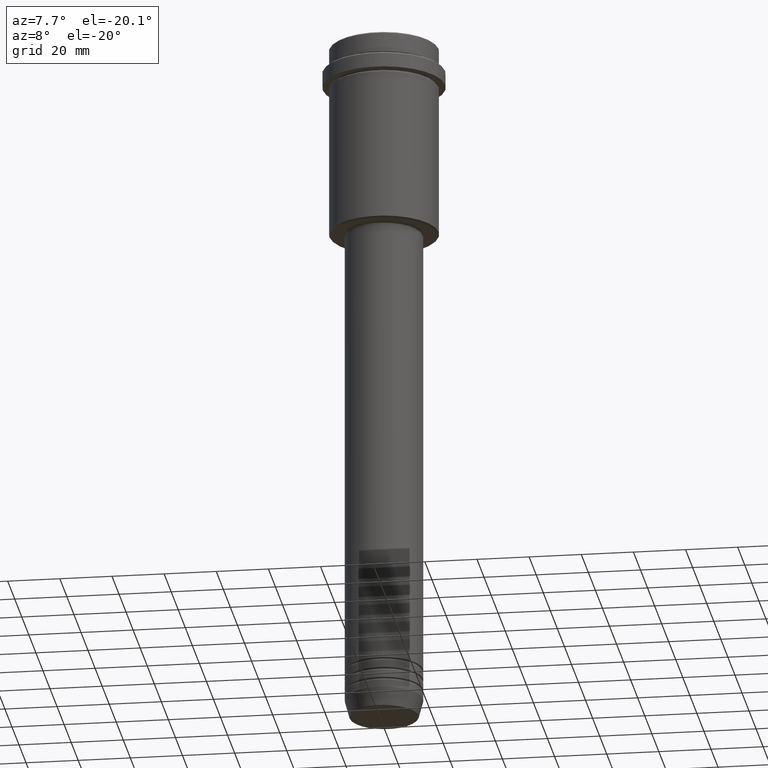
[diagram: clean part render]
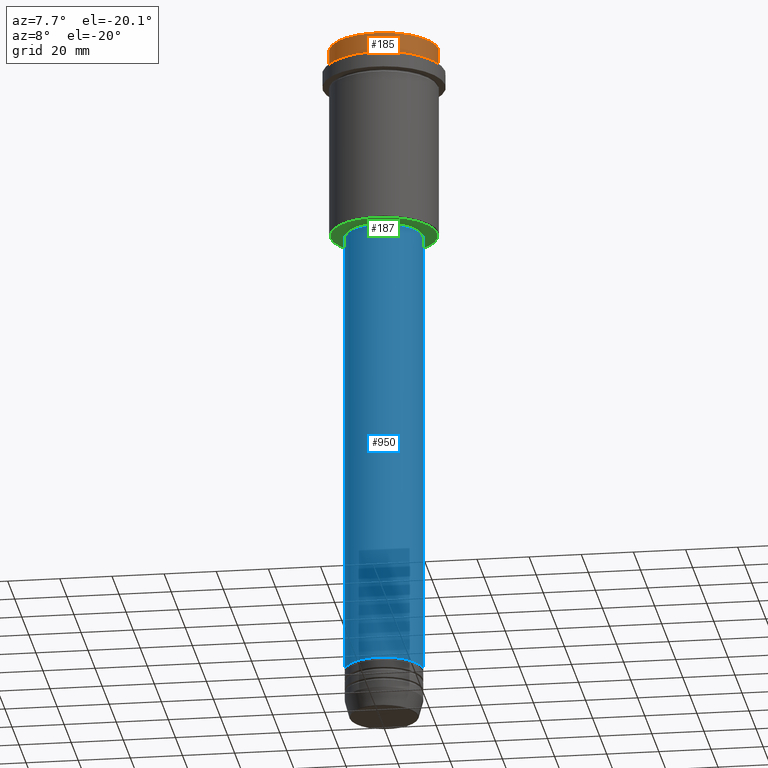
[diagram: same view with three faces highlighted in distinct colors, each labeled with its STEP entity id]
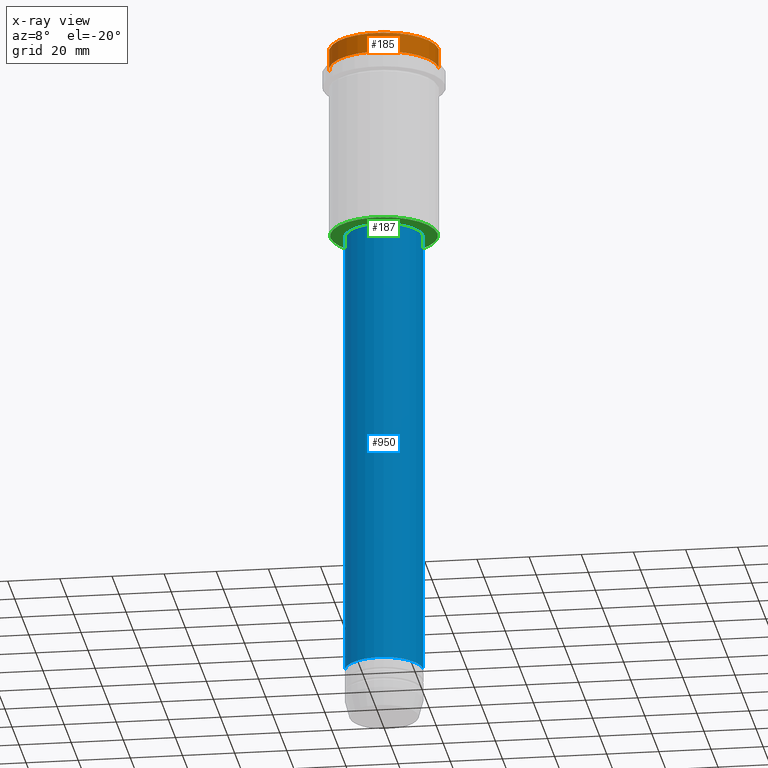
[diagram: x-ray of the same camera — body ghosted, the three highlighted faces saturated]
A machine part, auxiliary view with three faces highlighted in distinct colors.
The next image is the same camera in x-ray (body ghosted, the three faces saturated) — at least one of them is partly hidden behind the body in this view.
Their STEP definitions:

[orange] entity #185 — the highlighted cylindrical surface (partial cylindrical patch) has radius 21 mm, axis along (-0, -0, 1).
#8 = DIRECTION ( 'NONE',  ( 1.000000000000000000, 0.000000000000000000, 0.000000000000000000 ) ) ;
#49 = VERTEX_POINT ( 'NONE', #1188 ) ;
#58 = LINE ( 'NONE', #1007, #860 ) ;
#157 = EDGE_CURVE ( 'NONE', #448, #497, #655, .T. ) ;
#176 = DIRECTION ( 'NONE',  ( -0.000000000000000000, -0.000000000000000000, 1.000000000000000000 ) ) ;
#185 = ADVANCED_FACE ( 'NONE', ( #452 ), #560, .T. ) ;
#192 = ORIENTED_EDGE ( 'NONE', *, *, #334, .F. ) ;
#202 = ORIENTED_EDGE ( 'NONE', *, *, #310, .T. ) ;
#310 = EDGE_CURVE ( 'NONE', #791, #448, #58, .T. ) ;
#315 = CARTESIAN_POINT ( 'NONE',  ( 20.99999999999999645, 0.000000000000000000, -0.5000000000000905942 ) ) ;
#329 = DIRECTION ( 'NONE',  ( -0.000000000000000000, -0.000000000000000000, 1.000000000000000000 ) ) ;
#333 = CARTESIAN_POINT ( 'NONE',  ( 0.000000000000000000, 0.000000000000000000, -0.5000000000000905942 ) ) ;
#334 = EDGE_CURVE ( 'NONE', #49, #497, #1237, .T. ) ;
#389 = EDGE_LOOP ( 'NONE', ( #192, #496, #202, #987 ) ) ;
#448 = VERTEX_POINT ( 'NONE', #315 ) ;
#452 = FACE_OUTER_BOUND ( 'NONE', #389, .T. ) ;
#496 = ORIENTED_EDGE ( 'NONE', *, *, #1053, .T. ) ;
#497 = VERTEX_POINT ( 'NONE', #630 ) ;
#539 = DIRECTION ( 'NONE',  ( -0.000000000000000000, -0.000000000000000000, 1.000000000000000000 ) ) ;
#560 = CYLINDRICAL_SURFACE ( 'NONE', #1062, 20.99999999999999645 ) ;
#573 = CIRCLE ( 'NONE', #865, 20.99999999999999645 ) ;
#630 = CARTESIAN_POINT ( 'NONE',  ( -20.99999999999999645, 2.571758278209441267E-15, -0.5000000000000905942 ) ) ;
#655 = CIRCLE ( 'NONE', #1176, 20.99999999999999645 ) ;
#694 = CARTESIAN_POINT ( 'NONE',  ( 20.99999999999999645, 0.000000000000000000, -7.999999999999998224 ) ) ;
#791 = VERTEX_POINT ( 'NONE', #694 ) ;
#860 = VECTOR ( 'NONE', #1144, 1000.000000000000000 ) ;
#865 = AXIS2_PLACEMENT_3D ( 'NONE', #1309, #329, #1078 ) ;
#986 = CARTESIAN_POINT ( 'NONE',  ( 0.000000000000000000, 0.000000000000000000, 0.000000000000000000 ) ) ;
#987 = ORIENTED_EDGE ( 'NONE', *, *, #157, .T. ) ;
#1007 = CARTESIAN_POINT ( 'NONE',  ( 20.99999999999999645, 0.000000000000000000, 0.000000000000000000 ) ) ;
#1013 = CARTESIAN_POINT ( 'NONE',  ( -20.99999999999999645, 2.571758278209441267E-15, 0.000000000000000000 ) ) ;
#1053 = EDGE_CURVE ( 'NONE', #49, #791, #573, .T. ) ;
#1062 = AXIS2_PLACEMENT_3D ( 'NONE', #986, #539, #8 ) ;
#1075 = DIRECTION ( 'NONE',  ( 0.000000000000000000, 0.000000000000000000, -1.000000000000000000 ) ) ;
#1078 = DIRECTION ( 'NONE',  ( 1.000000000000000000, 0.000000000000000000, 0.000000000000000000 ) ) ;
#1144 = DIRECTION ( 'NONE',  ( -0.000000000000000000, -0.000000000000000000, 1.000000000000000000 ) ) ;
#1176 = AXIS2_PLACEMENT_3D ( 'NONE', #333, #1075, #1320 ) ;
#1188 = CARTESIAN_POINT ( 'NONE',  ( -20.99999999999999645, 2.571758278209441267E-15, -7.999999999999998224 ) ) ;
#1237 = LINE ( 'NONE', #1013, #1330 ) ;
#1309 = CARTESIAN_POINT ( 'NONE',  ( 0.000000000000000000, 0.000000000000000000, -7.999999999999998224 ) ) ;
#1320 = DIRECTION ( 'NONE',  ( 1.000000000000000000, 0.000000000000000000, 0.000000000000000000 ) ) ;
#1330 = VECTOR ( 'NONE', #176, 1000.000000000000000 ) ;

[blue] entity #950 — the highlighted cylindrical surface (partial cylindrical patch) has radius 15 mm, axis along (-0, -0, 1).
#65 = ORIENTED_EDGE ( 'NONE', *, *, #1145, .T. ) ;
#96 = AXIS2_PLACEMENT_3D ( 'NONE', #945, #306, #1058 ) ;
#247 = CARTESIAN_POINT ( 'NONE',  ( 15.00000000000000000, 0.000000000000000000, 0.000000000000000000 ) ) ;
#265 = DIRECTION ( 'NONE',  ( -0.000000000000000000, -0.000000000000000000, 1.000000000000000000 ) ) ;
#303 = VECTOR ( 'NONE', #729, 1000.000000000000000 ) ;
#306 = DIRECTION ( 'NONE',  ( -0.000000000000000000, -0.000000000000000000, 1.000000000000000000 ) ) ;
#364 = CARTESIAN_POINT ( 'NONE',  ( 0.000000000000000000, 0.000000000000000000, -76.00000000000001421 ) ) ;
#404 = CARTESIAN_POINT ( 'NONE',  ( -15.00000000000000000, 1.836970198721029589E-15, -250.9999999999998863 ) ) ;
#409 = VERTEX_POINT ( 'NONE', #943 ) ;
#416 = ORIENTED_EDGE ( 'NONE', *, *, #1172, .T. ) ;
#429 = ORIENTED_EDGE ( 'NONE', *, *, #1129, .F. ) ;
#466 = LINE ( 'NONE', #247, #467 ) ;
#467 = VECTOR ( 'NONE', #579, 1000.000000000000000 ) ;
#520 = CYLINDRICAL_SURFACE ( 'NONE', #96, 15.00000000000000000 ) ;
#578 = EDGE_LOOP ( 'NONE', ( #1208, #416, #65, #429 ) ) ;
#579 = DIRECTION ( 'NONE',  ( -0.000000000000000000, -0.000000000000000000, 1.000000000000000000 ) ) ;
#687 = AXIS2_PLACEMENT_3D ( 'NONE', #1341, #265, #809 ) ;
#693 = DIRECTION ( 'NONE',  ( 1.000000000000000000, 0.000000000000000000, 0.000000000000000000 ) ) ;
#729 = DIRECTION ( 'NONE',  ( -0.000000000000000000, -0.000000000000000000, 1.000000000000000000 ) ) ;
#773 = CARTESIAN_POINT ( 'NONE',  ( 15.00000000000000000, 0.000000000000000000, -250.9999999999998863 ) ) ;
#809 = DIRECTION ( 'NONE',  ( 1.000000000000000000, 0.000000000000000000, 0.000000000000000000 ) ) ;
#858 = EDGE_CURVE ( 'NONE', #1265, #1375, #1394, .T. ) ;
#941 = FACE_OUTER_BOUND ( 'NONE', #578, .T. ) ;
#943 = CARTESIAN_POINT ( 'NONE',  ( 15.00000000000000000, 0.000000000000000000, -76.00000000000001421 ) ) ;
#945 = CARTESIAN_POINT ( 'NONE',  ( 0.000000000000000000, 0.000000000000000000, 0.000000000000000000 ) ) ;
#950 = ADVANCED_FACE ( 'NONE', ( #941 ), #520, .T. ) ;
#989 = DIRECTION ( 'NONE',  ( -0.000000000000000000, -0.000000000000000000, 1.000000000000000000 ) ) ;
#1025 = CARTESIAN_POINT ( 'NONE',  ( -15.00000000000000000, 1.836970198721029589E-15, -76.00000000000001421 ) ) ;
#1035 = VERTEX_POINT ( 'NONE', #773 ) ;
#1058 = DIRECTION ( 'NONE',  ( 1.000000000000000000, 0.000000000000000000, 0.000000000000000000 ) ) ;
#1091 = AXIS2_PLACEMENT_3D ( 'NONE', #364, #989, #693 ) ;
#1129 = EDGE_CURVE ( 'NONE', #1375, #409, #1379, .T. ) ;
#1145 = EDGE_CURVE ( 'NONE', #1035, #409, #466, .T. ) ;
#1168 = CARTESIAN_POINT ( 'NONE',  ( -15.00000000000000000, 1.836970198721029589E-15, 0.000000000000000000 ) ) ;
#1172 = EDGE_CURVE ( 'NONE', #1265, #1035, #1313, .T. ) ;
#1208 = ORIENTED_EDGE ( 'NONE', *, *, #858, .F. ) ;
#1265 = VERTEX_POINT ( 'NONE', #404 ) ;
#1313 = CIRCLE ( 'NONE', #687, 15.00000000000000000 ) ;
#1341 = CARTESIAN_POINT ( 'NONE',  ( 0.000000000000000000, 0.000000000000000000, -250.9999999999998863 ) ) ;
#1375 = VERTEX_POINT ( 'NONE', #1025 ) ;
#1379 = CIRCLE ( 'NONE', #1091, 15.00000000000000000 ) ;
#1394 = LINE ( 'NONE', #1168, #303 ) ;

[green] entity #187 — the highlighted planar face has unit normal (0, 0, -1).
#14 = DIRECTION ( 'NONE',  ( 0.000000000000000000, 0.000000000000000000, -1.000000000000000000 ) ) ;
#30 = CARTESIAN_POINT ( 'NONE',  ( 0.000000000000000000, 21.00000000000000000, -75.00000000000001421 ) ) ;
#108 = VERTEX_POINT ( 'NONE', #154 ) ;
#113 = CIRCLE ( 'NONE', #299, 14.49999999999999822 ) ;
#127 = EDGE_CURVE ( 'NONE', #1255, #108, #991, .T. ) ;
#131 = ORIENTED_EDGE ( 'NONE', *, *, #127, .T. ) ;
#135 = DIRECTION ( 'NONE',  ( 1.000000000000000000, 0.000000000000000000, 0.000000000000000000 ) ) ;
#152 = EDGE_LOOP ( 'NONE', ( #180, #131 ) ) ;
#154 = CARTESIAN_POINT ( 'NONE',  ( 20.49999999999998934, 0.000000000000000000, -75.00000000000001421 ) ) ;
#180 = ORIENTED_EDGE ( 'NONE', *, *, #1272, .T. ) ;
#187 = ADVANCED_FACE ( 'NONE', ( #226, #1315 ), #440, .T. ) ;
#219 = EDGE_CURVE ( 'NONE', #927, #947, #113, .T. ) ;
#226 = FACE_OUTER_BOUND ( 'NONE', #152, .T. ) ;
#250 = CARTESIAN_POINT ( 'NONE',  ( 0.000000000000000000, 0.000000000000000000, -75.00000000000001421 ) ) ;
#258 = DIRECTION ( 'NONE',  ( 1.000000000000000000, 0.000000000000000000, 0.000000000000000000 ) ) ;
#299 = AXIS2_PLACEMENT_3D ( 'NONE', #250, #675, #135 ) ;
#344 = DIRECTION ( 'NONE',  ( 0.000000000000000000, 0.000000000000000000, -1.000000000000000000 ) ) ;
#427 = DIRECTION ( 'NONE',  ( 0.000000000000000000, 0.000000000000000000, -1.000000000000000000 ) ) ;
#440 = PLANE ( 'NONE',  #905 ) ;
#455 = ORIENTED_EDGE ( 'NONE', *, *, #219, .T. ) ;
#464 = ORIENTED_EDGE ( 'NONE', *, *, #718, .T. ) ;
#516 = CARTESIAN_POINT ( 'NONE',  ( -14.49999999999999822, 1.775737858763662015E-15, -75.00000000000001421 ) ) ;
#675 = DIRECTION ( 'NONE',  ( -0.000000000000000000, -0.000000000000000000, 1.000000000000000000 ) ) ;
#688 = DIRECTION ( 'NONE',  ( -0.000000000000000000, -0.000000000000000000, 1.000000000000000000 ) ) ;
#703 = DIRECTION ( 'NONE',  ( -1.000000000000000000, 0.000000000000000000, 0.000000000000000000 ) ) ;
#718 = EDGE_CURVE ( 'NONE', #947, #927, #1086, .T. ) ;
#788 = CARTESIAN_POINT ( 'NONE',  ( 0.000000000000000000, 0.000000000000000000, -75.00000000000001421 ) ) ;
#884 = DIRECTION ( 'NONE',  ( -1.000000000000000000, 0.000000000000000000, -0.000000000000000000 ) ) ;
#886 = CIRCLE ( 'NONE', #1258, 20.49999999999998934 ) ;
#905 = AXIS2_PLACEMENT_3D ( 'NONE', #30, #344, #884 ) ;
#927 = VERTEX_POINT ( 'NONE', #516 ) ;
#947 = VERTEX_POINT ( 'NONE', #1388 ) ;
#991 = CIRCLE ( 'NONE', #1374, 20.49999999999998934 ) ;
#1018 = CARTESIAN_POINT ( 'NONE',  ( -20.49999999999998934, 2.541142108230757085E-15, -75.00000000000001421 ) ) ;
#1056 = CARTESIAN_POINT ( 'NONE',  ( 0.000000000000000000, 0.000000000000000000, -75.00000000000001421 ) ) ;
#1086 = CIRCLE ( 'NONE', #1256, 14.49999999999999822 ) ;
#1108 = CARTESIAN_POINT ( 'NONE',  ( 0.000000000000000000, 0.000000000000000000, -75.00000000000001421 ) ) ;
#1190 = DIRECTION ( 'NONE',  ( -1.000000000000000000, 0.000000000000000000, 0.000000000000000000 ) ) ;
#1255 = VERTEX_POINT ( 'NONE', #1018 ) ;
#1256 = AXIS2_PLACEMENT_3D ( 'NONE', #1108, #688, #258 ) ;
#1258 = AXIS2_PLACEMENT_3D ( 'NONE', #1056, #427, #703 ) ;
#1272 = EDGE_CURVE ( 'NONE', #108, #1255, #886, .T. ) ;
#1291 = EDGE_LOOP ( 'NONE', ( #464, #455 ) ) ;
#1315 = FACE_BOUND ( 'NONE', #1291, .T. ) ;
#1374 = AXIS2_PLACEMENT_3D ( 'NONE', #788, #14, #1190 ) ;
#1388 = CARTESIAN_POINT ( 'NONE',  ( 14.49999999999999822, 0.000000000000000000, -75.00000000000001421 ) ) ;